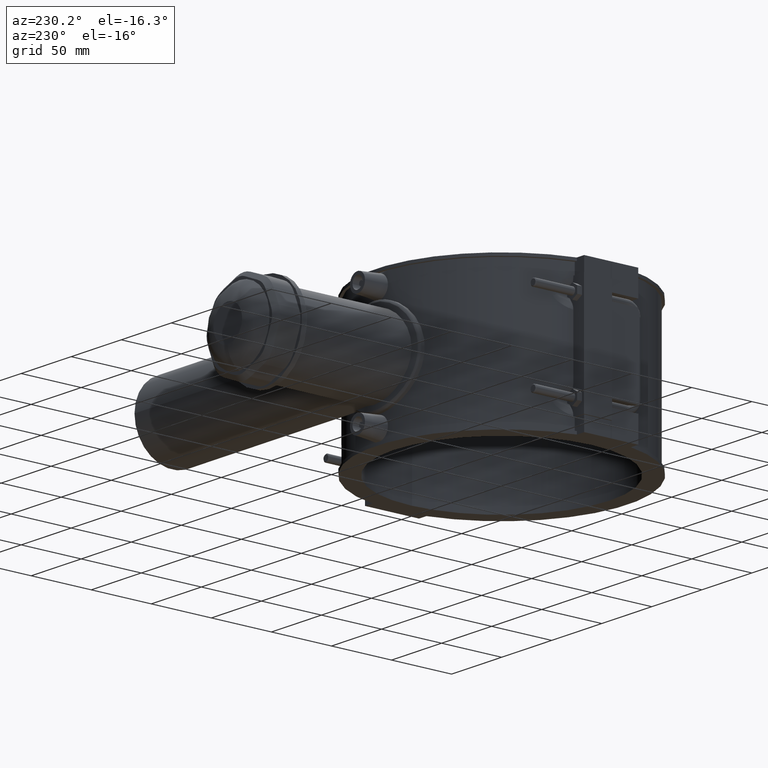
[diagram: clean part render]
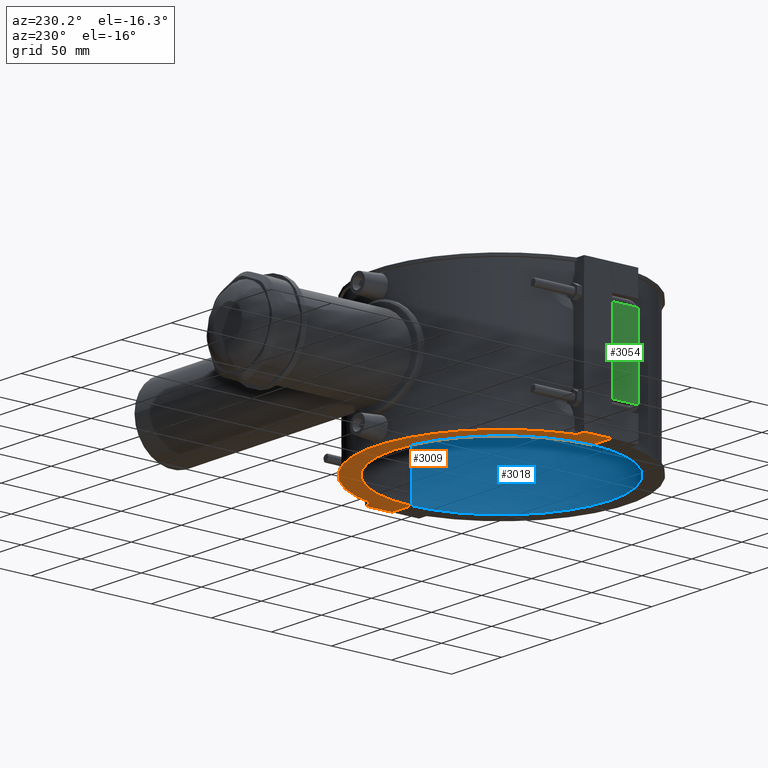
[diagram: same view with three faces highlighted in distinct colors, each labeled with its STEP entity id]
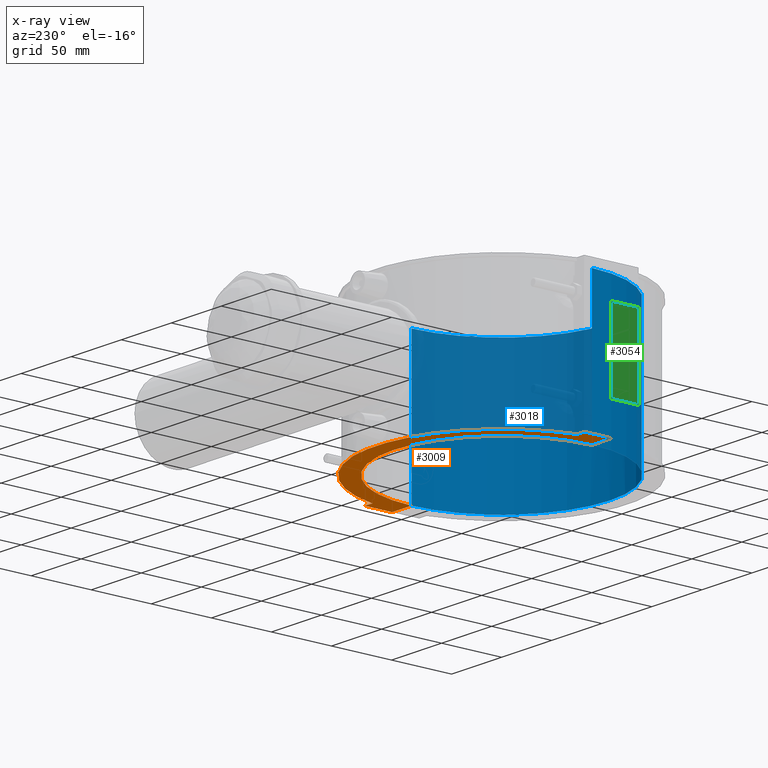
[diagram: x-ray of the same camera — body ghosted, the three highlighted faces saturated]
A machine part, auxiliary view with three faces highlighted in distinct colors.
The next image is the same camera in x-ray (body ghosted, the three faces saturated) — at least one of them is partly hidden behind the body in this view.
Their STEP definitions:

[orange] entity #3009 — the highlighted planar face has unit normal (0, 0, 1).
#46=LINE('',#4419,#325);
#47=LINE('',#4423,#326);
#48=LINE('',#4425,#327);
#49=LINE('',#4427,#328);
#50=LINE('',#4431,#329);
#51=LINE('',#4432,#330);
#325=VECTOR('',#3489,19.5000138888899);
#326=VECTOR('',#3492,19.50001388889);
#327=VECTOR('',#3493,22.45);
#328=VECTOR('',#3494,7.29534695523888);
#329=VECTOR('',#3497,7.29534695523888);
#330=VECTOR('',#3498,22.45);
#599=PLANE('',#3195);
#761=CIRCLE('',#3196,90.);
#762=CIRCLE('',#3197,104.652);
#864=FACE_OUTER_BOUND('',#1046,.T.);
#1046=EDGE_LOOP('',(#2073,#2074,#2075,#2076,#2077,#2078,#2079,#2080));
#1340=VERTEX_POINT('',#4417);
#1341=VERTEX_POINT('',#4418);
#1342=VERTEX_POINT('',#4420);
#1343=VERTEX_POINT('',#4422);
#1344=VERTEX_POINT('',#4424);
#1345=VERTEX_POINT('',#4426);
#1346=VERTEX_POINT('',#4428);
#1347=VERTEX_POINT('',#4430);
#1634=EDGE_CURVE('',#1340,#1341,#46,.T.);
#1635=EDGE_CURVE('',#1341,#1342,#761,.T.);
#1636=EDGE_CURVE('',#1342,#1343,#47,.T.);
#1637=EDGE_CURVE('',#1343,#1344,#48,.T.);
#1638=EDGE_CURVE('',#1344,#1345,#49,.T.);
#1639=EDGE_CURVE('',#1346,#1345,#762,.T.);
#1640=EDGE_CURVE('',#1346,#1347,#50,.T.);
#1641=EDGE_CURVE('',#1347,#1340,#51,.T.);
#2073=ORIENTED_EDGE('',*,*,#1634,.T.);
#2074=ORIENTED_EDGE('',*,*,#1635,.T.);
#2075=ORIENTED_EDGE('',*,*,#1636,.T.);
#2076=ORIENTED_EDGE('',*,*,#1637,.T.);
#2077=ORIENTED_EDGE('',*,*,#1638,.T.);
#2078=ORIENTED_EDGE('',*,*,#1639,.F.);
#2079=ORIENTED_EDGE('',*,*,#1640,.T.);
#2080=ORIENTED_EDGE('',*,*,#1641,.T.);
#3009=ADVANCED_FACE('',(#864),#599,.F.);
#3195=AXIS2_PLACEMENT_3D('',#4416,#3487,#3488);
#3196=AXIS2_PLACEMENT_3D('',#4421,#3490,#3491);
#3197=AXIS2_PLACEMENT_3D('',#4429,#3495,#3496);
#3487=DIRECTION('center_axis',(0.,0.,1.));
#3488=DIRECTION('ref_axis',(1.,0.,0.));
#3489=DIRECTION('',(-1.,1.58422235249023E-19,0.));
#3490=DIRECTION('center_axis',(0.,0.,1.));
#3491=DIRECTION('ref_axis',(-1.,0.,0.));
#3492=DIRECTION('',(-1.,1.58422235249023E-19,0.));
#3493=DIRECTION('',(0.,1.,0.));
#3494=DIRECTION('',(1.,0.,0.));
#3495=DIRECTION('center_axis',(0.,0.,1.));
#3496=DIRECTION('ref_axis',(0.976614427290077,0.21499828001376,0.));
#3497=DIRECTION('',(1.,0.,0.));
#3498=DIRECTION('',(0.,-1.,0.));
#4416=CARTESIAN_POINT('Origin',(-105.907033398991,1.00372537223288E-16,
-59.));
#4417=CARTESIAN_POINT('',(109.5,0.0499999999999989,-59.));
#4418=CARTESIAN_POINT('',(89.99998611111,0.0499999999999989,-59.));
#4419=CARTESIAN_POINT('',(1.79648330050455,0.0499999999999989,-59.));
#4420=CARTESIAN_POINT('',(-89.99998611111,0.0499999999999989,-59.));
#4421=CARTESIAN_POINT('Origin',(0.,0.,-59.));
#4422=CARTESIAN_POINT('',(-109.5,0.0499999999999989,-59.));
#4423=CARTESIAN_POINT('',(1.79648330050455,0.0499999999999989,-59.));
#4424=CARTESIAN_POINT('',(-109.5,22.5,-59.));
#4425=CARTESIAN_POINT('',(-109.5,22.5,-59.));
#4426=CARTESIAN_POINT('',(-102.204653044761,22.5,-59.));
#4427=CARTESIAN_POINT('',(-100.102497471342,22.5,-59.));
#4428=CARTESIAN_POINT('',(102.204653044761,22.5,-59.));
#4429=CARTESIAN_POINT('Origin',(0.,0.,-59.));
#4430=CARTESIAN_POINT('',(109.5,22.5,-59.));
#4431=CARTESIAN_POINT('',(109.5,22.5,-59.));
#4432=CARTESIAN_POINT('',(109.5,-22.5,-59.));

[blue] entity #3018 — the highlighted cylindrical surface (partial cylindrical patch) has radius 90 mm, axis along (0, 0, 1).
#70=LINE('',#4538,#349);
#94=LINE('',#4598,#373);
#349=VECTOR('',#3531,118.);
#373=VECTOR('',#3575,118.);
#712=FACE_BOUND('',#1059,.T.);
#767=CIRCLE('',#3209,90.);
#770=CIRCLE('',#3213,90.);
#873=FACE_OUTER_BOUND('',#1058,.T.);
#1058=EDGE_LOOP('',(#2143,#2144,#2145,#2146));
#1059=EDGE_LOOP('',(#2147));
#1277=B_SPLINE_CURVE_WITH_KNOTS('',3,(#4600,#4601,#4602,#4603,#4604,#4605,
#4606,#4607,#4608,#4609,#4610,#4611,#4612,#4613,#4614,#4615,#4616,#4617,
#4618,#4619,#4620,#4621,#4622,#4623,#4624,#4625,#4626,#4627,#4628,#4629,
#4630,#4631,#4632,#4633,#4634,#4635,#4636,#4637,#4638,#4639,#4640,#4641,
#4642,#4643,#4644,#4645,#4646,#4647,#4648,#4649,#4650,#4651,#4652,#4653,
#4654,#4655,#4656,#4657,#4658,#4659,#4660,#4661,#4662,#4663,#4664,#4665),
 .UNSPECIFIED.,.T.,.F.,(4,2,2,2,2,2,2,2,2,2,2,2,2,2,2,2,2,2,2,2,2,2,2,2,
2,2,2,2,2,2,2,2,4),(0.,0.295977203697339,0.591954407394679,0.887931611092018,
1.18390881478936,1.47987655613321,1.77584429747706,2.07181203882091,2.36777978016476,
2.66374752150861,2.95971526285246,3.25568300419631,3.55165074554016,3.8476279492375,
4.14360515293484,4.43958235663218,4.73555956032952,5.03153676402686,5.3275139677242,
5.62349117142153,5.91946837511887,6.21543611646272,6.51140385780657,6.80737159915042,
7.10333934049427,7.39930708183813,7.69527482318198,7.99124256452583,8.28721030586968,
8.58318750956701,8.87916471326436,9.1751419169617,9.47111912065903),
 .UNSPECIFIED.);
#1363=VERTEX_POINT('',#4535);
#1364=VERTEX_POINT('',#4537);
#1380=VERTEX_POINT('',#4571);
#1385=VERTEX_POINT('',#4584);
#1391=VERTEX_POINT('',#4599);
#1663=EDGE_CURVE('',#1364,#1363,#70,.T.);
#1680=EDGE_CURVE('',#1380,#1363,#767,.T.);
#1692=EDGE_CURVE('',#1364,#1385,#770,.T.);
#1693=EDGE_CURVE('',#1380,#1385,#94,.T.);
#1694=EDGE_CURVE('',#1391,#1391,#1277,.T.);
#2143=ORIENTED_EDGE('',*,*,#1693,.T.);
#2144=ORIENTED_EDGE('',*,*,#1692,.F.);
#2145=ORIENTED_EDGE('',*,*,#1663,.T.);
#2146=ORIENTED_EDGE('',*,*,#1680,.F.);
#2147=ORIENTED_EDGE('',*,*,#1694,.T.);
#2962=CYLINDRICAL_SURFACE('',#3214,90.);
#3018=ADVANCED_FACE('',(#873,#712),#2962,.F.);
#3209=AXIS2_PLACEMENT_3D('',#4573,#3554,#3555);
#3213=AXIS2_PLACEMENT_3D('',#4596,#3571,#3572);
#3214=AXIS2_PLACEMENT_3D('',#4597,#3573,#3574);
#3531=DIRECTION('',(0.,0.,1.));
#3554=DIRECTION('center_axis',(0.,0.,-1.));
#3555=DIRECTION('ref_axis',(-1.,0.,0.));
#3571=DIRECTION('center_axis',(0.,0.,1.));
#3572=DIRECTION('ref_axis',(-1.,0.,0.));
#3573=DIRECTION('center_axis',(0.,0.,1.));
#3574=DIRECTION('ref_axis',(-1.,0.,0.));
#3575=DIRECTION('',(0.,0.,-1.));
#4535=CARTESIAN_POINT('',(-89.99998611111,-0.0499999999999989,59.));
#4537=CARTESIAN_POINT('',(-89.99998611111,-0.0499999999999989,-59.));
#4538=CARTESIAN_POINT('',(-89.99998611111,-0.0499999999999989,0.));
#4571=CARTESIAN_POINT('',(89.99998611111,-0.0499999999999989,59.));
#4573=CARTESIAN_POINT('Origin',(0.,0.,59.));
#4584=CARTESIAN_POINT('',(89.99998611111,-0.0499999999999989,-59.));
#4596=CARTESIAN_POINT('Origin',(0.,0.,-59.));
#4597=CARTESIAN_POINT('Origin',(0.,0.,0.));
#4598=CARTESIAN_POINT('',(89.99998611111,-0.0499999999999989,0.));
#4599=CARTESIAN_POINT('',(15.68,-88.6235724849772,0.));
#4600=CARTESIAN_POINT('Ctrl Pts',(15.68,-88.6235724849772,0.));
#4601=CARTESIAN_POINT('Ctrl Pts',(15.68,-88.6235724849772,0.986590678991132));
#4602=CARTESIAN_POINT('Ctrl Pts',(15.5853843076952,-88.6404904668023,2.00622011480189));
#4603=CARTESIAN_POINT('Ctrl Pts',(15.1875750153918,-88.7095165095146,4.03319827603943));
#4604=CARTESIAN_POINT('Ctrl Pts',(14.8844737729482,-88.7615738487349,5.04056685315292));
#4605=CARTESIAN_POINT('Ctrl Pts',(14.0837550864809,-88.8921390782618,6.97156521187791));
#4606=CARTESIAN_POINT('Ctrl Pts',(13.5855007005201,-88.9706256653422,7.89677141113685));
#4607=CARTESIAN_POINT('Ctrl Pts',(12.4348554077353,-89.1387257679826,9.6072472131556));
#4608=CARTESIAN_POINT('Ctrl Pts',(11.7823870213668,-89.2281668421019,10.3924816366433));
#4609=CARTESIAN_POINT('Ctrl Pts',(10.3925038541924,-89.400706005088,11.7823648038178));
#4610=CARTESIAN_POINT('Ctrl Pts',(9.60727971514996,-89.4898798575154,12.4348307546676));
#4611=CARTESIAN_POINT('Ctrl Pts',(7.89679730933778,-89.657007605038,13.5854860674005));
#4612=CARTESIAN_POINT('Ctrl Pts',(6.97157422799911,-89.7347956106372,14.0837518206665));
#4613=CARTESIAN_POINT('Ctrl Pts',(5.04054309521847,-89.8639489212032,14.8844831516831));
#4614=CARTESIAN_POINT('Ctrl Pts',(4.03315908421279,-89.9153043126498,15.1875855263665));
#4615=CARTESIAN_POINT('Ctrl Pts',(2.00617686960529,-89.9833516613094,15.5853899754747));
#4616=CARTESIAN_POINT('Ctrl Pts',(0.986559137812836,-90.,15.68));
#4617=CARTESIAN_POINT('Ctrl Pts',(-0.986559137812832,-90.,15.68));
#4618=CARTESIAN_POINT('Ctrl Pts',(-2.00617686960528,-89.9833516613094,15.5853899754747));
#4619=CARTESIAN_POINT('Ctrl Pts',(-4.03315908421278,-89.9153043126498,15.1875855263665));
#4620=CARTESIAN_POINT('Ctrl Pts',(-5.04054309521846,-89.8639489212032,14.8844831516831));
#4621=CARTESIAN_POINT('Ctrl Pts',(-6.9715742279991,-89.7347956106372,14.0837518206665));
#4622=CARTESIAN_POINT('Ctrl Pts',(-7.89679730933778,-89.657007605038,13.5854860674005));
#4623=CARTESIAN_POINT('Ctrl Pts',(-9.60727971514996,-89.4898798575154,12.4348307546676));
#4624=CARTESIAN_POINT('Ctrl Pts',(-10.3925038541924,-89.400706005088,11.7823648038178));
#4625=CARTESIAN_POINT('Ctrl Pts',(-11.7823870213668,-89.2281668421019,10.3924816366433));
#4626=CARTESIAN_POINT('Ctrl Pts',(-12.4348554077353,-89.1387257679826,9.6072472131556));
#4627=CARTESIAN_POINT('Ctrl Pts',(-13.5855007005201,-88.9706256653422,7.89677141113685));
#4628=CARTESIAN_POINT('Ctrl Pts',(-14.0837550864809,-88.8921390782618,6.97156521187791));
#4629=CARTESIAN_POINT('Ctrl Pts',(-14.8844737729482,-88.7615738487349,5.04056685315293));
#4630=CARTESIAN_POINT('Ctrl Pts',(-15.1875750153918,-88.7095165095146,4.03319827603943));
#4631=CARTESIAN_POINT('Ctrl Pts',(-15.5853843076952,-88.6404904668023,2.00622011480189));
#4632=CARTESIAN_POINT('Ctrl Pts',(-15.68,-88.6235724849772,0.986590678991132));
#4633=CARTESIAN_POINT('Ctrl Pts',(-15.68,-88.6235724849772,-0.986590678991132));
#4634=CARTESIAN_POINT('Ctrl Pts',(-15.5853843076952,-88.6404904668023,-2.00622011480189));
#4635=CARTESIAN_POINT('Ctrl Pts',(-15.1875750153918,-88.7095165095146,-4.03319827603943));
#4636=CARTESIAN_POINT('Ctrl Pts',(-14.8844737729482,-88.7615738487349,-5.04056685315293));
#4637=CARTESIAN_POINT('Ctrl Pts',(-14.0837550864809,-88.8921390782618,-6.97156521187791));
#4638=CARTESIAN_POINT('Ctrl Pts',(-13.5855007005201,-88.9706256653422,-7.89677141113684));
#4639=CARTESIAN_POINT('Ctrl Pts',(-12.4348554077353,-89.1387257679826,-9.6072472131556));
#4640=CARTESIAN_POINT('Ctrl Pts',(-11.7823870213668,-89.2281668421019,-10.3924816366433));
#4641=CARTESIAN_POINT('Ctrl Pts',(-10.3925038541924,-89.400706005088,-11.7823648038178));
#4642=CARTESIAN_POINT('Ctrl Pts',(-9.60727971514996,-89.4898798575154,-12.4348307546676));
#4643=CARTESIAN_POINT('Ctrl Pts',(-7.89679730933778,-89.657007605038,-13.5854860674005));
#4644=CARTESIAN_POINT('Ctrl Pts',(-6.9715742279991,-89.7347956106372,-14.0837518206665));
#4645=CARTESIAN_POINT('Ctrl Pts',(-5.04054309521847,-89.8639489212032,-14.8844831516831));
#4646=CARTESIAN_POINT('Ctrl Pts',(-4.03315908421279,-89.9153043126498,-15.1875855263665));
#4647=CARTESIAN_POINT('Ctrl Pts',(-2.00617686960529,-89.9833516613094,-15.5853899754747));
#4648=CARTESIAN_POINT('Ctrl Pts',(-0.986559137812837,-90.,-15.68));
#4649=CARTESIAN_POINT('Ctrl Pts',(0.986559137812831,-90.,-15.68));
#4650=CARTESIAN_POINT('Ctrl Pts',(2.00617686960528,-89.9833516613094,-15.5853899754747));
#4651=CARTESIAN_POINT('Ctrl Pts',(4.03315908421278,-89.9153043126498,-15.1875855263665));
#4652=CARTESIAN_POINT('Ctrl Pts',(5.04054309521846,-89.8639489212032,-14.8844831516831));
#4653=CARTESIAN_POINT('Ctrl Pts',(6.9715742279991,-89.7347956106372,-14.0837518206665));
#4654=CARTESIAN_POINT('Ctrl Pts',(7.89679730933778,-89.657007605038,-13.5854860674005));
#4655=CARTESIAN_POINT('Ctrl Pts',(9.60727971514996,-89.4898798575154,-12.4348307546676));
#4656=CARTESIAN_POINT('Ctrl Pts',(10.3925038541924,-89.400706005088,-11.7823648038178));
#4657=CARTESIAN_POINT('Ctrl Pts',(11.7823870213668,-89.2281668421019,-10.3924816366433));
#4658=CARTESIAN_POINT('Ctrl Pts',(12.4348554077353,-89.1387257679826,-9.60724721315561));
#4659=CARTESIAN_POINT('Ctrl Pts',(13.5855007005201,-88.9706256653422,-7.89677141113686));
#4660=CARTESIAN_POINT('Ctrl Pts',(14.0837550864809,-88.8921390782619,-6.97156521187791));
#4661=CARTESIAN_POINT('Ctrl Pts',(14.8844737729482,-88.7615738487349,-5.04056685315292));
#4662=CARTESIAN_POINT('Ctrl Pts',(15.1875750153918,-88.7095165095146,-4.03319827603942));
#4663=CARTESIAN_POINT('Ctrl Pts',(15.5853843076952,-88.6404904668023,-2.00622011480188));
#4664=CARTESIAN_POINT('Ctrl Pts',(15.68,-88.6235724849772,-0.98659067899113));
#4665=CARTESIAN_POINT('Ctrl Pts',(15.68,-88.6235724849772,-8.32667268468867E-16));

[green] entity #3054 — the highlighted planar face has unit normal (-1, 0, 0).
#77=LINE('',#4554,#356);
#155=LINE('',#5056,#434);
#156=LINE('',#5058,#435);
#157=LINE('',#5059,#436);
#356=VECTOR('',#3540,64.8);
#434=VECTOR('',#3744,22.45);
#435=VECTOR('',#3745,22.45);
#436=VECTOR('',#3746,64.8);
#629=PLANE('',#3268);
#909=FACE_OUTER_BOUND('',#1105,.T.);
#1105=EDGE_LOOP('',(#2322,#2323,#2324,#2325));
#1371=VERTEX_POINT('',#4551);
#1372=VERTEX_POINT('',#4553);
#1455=VERTEX_POINT('',#5055);
#1456=VERTEX_POINT('',#5057);
#1671=EDGE_CURVE('',#1372,#1371,#77,.T.);
#1788=EDGE_CURVE('',#1455,#1372,#155,.T.);
#1789=EDGE_CURVE('',#1371,#1456,#156,.T.);
#1790=EDGE_CURVE('',#1456,#1455,#157,.T.);
#2322=ORIENTED_EDGE('',*,*,#1788,.T.);
#2323=ORIENTED_EDGE('',*,*,#1671,.T.);
#2324=ORIENTED_EDGE('',*,*,#1789,.T.);
#2325=ORIENTED_EDGE('',*,*,#1790,.T.);
#3054=ADVANCED_FACE('',(#909),#629,.T.);
#3268=AXIS2_PLACEMENT_3D('',#5054,#3742,#3743);
#3540=DIRECTION('',(0.,0.,-1.));
#3742=DIRECTION('center_axis',(-1.,0.,0.));
#3743=DIRECTION('ref_axis',(0.,-1.,0.));
#3744=DIRECTION('',(0.,1.,0.));
#3745=DIRECTION('',(0.,-1.,0.));
#3746=DIRECTION('',(0.,0.,1.));
#4551=CARTESIAN_POINT('',(-109.5,-0.0499999999999989,-32.4));
#4553=CARTESIAN_POINT('',(-109.5,-0.0499999999999989,32.4));
#4554=CARTESIAN_POINT('',(-109.5,-0.0499999999999989,-29.5));
#5054=CARTESIAN_POINT('Origin',(-109.5,22.5,0.));
#5055=CARTESIAN_POINT('',(-109.5,-22.5,32.4));
#5056=CARTESIAN_POINT('',(-109.5,-4.44089209850063E-15,32.4));
#5057=CARTESIAN_POINT('',(-109.5,-22.5,-32.4));
#5058=CARTESIAN_POINT('',(-109.5,-4.44089209850063E-15,-32.4));
#5059=CARTESIAN_POINT('',(-109.5,-22.5,0.));